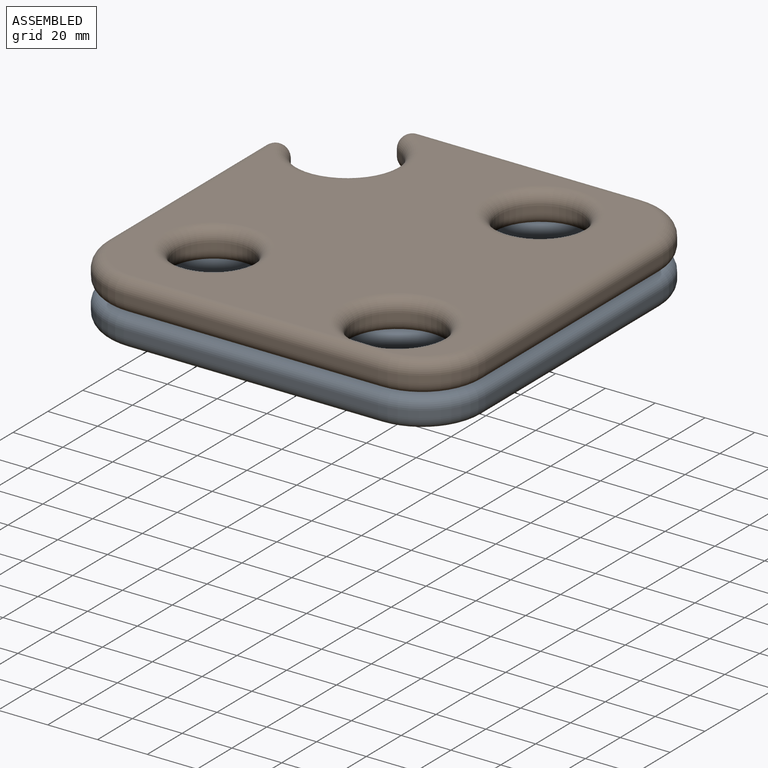
[diagram: assembled view]
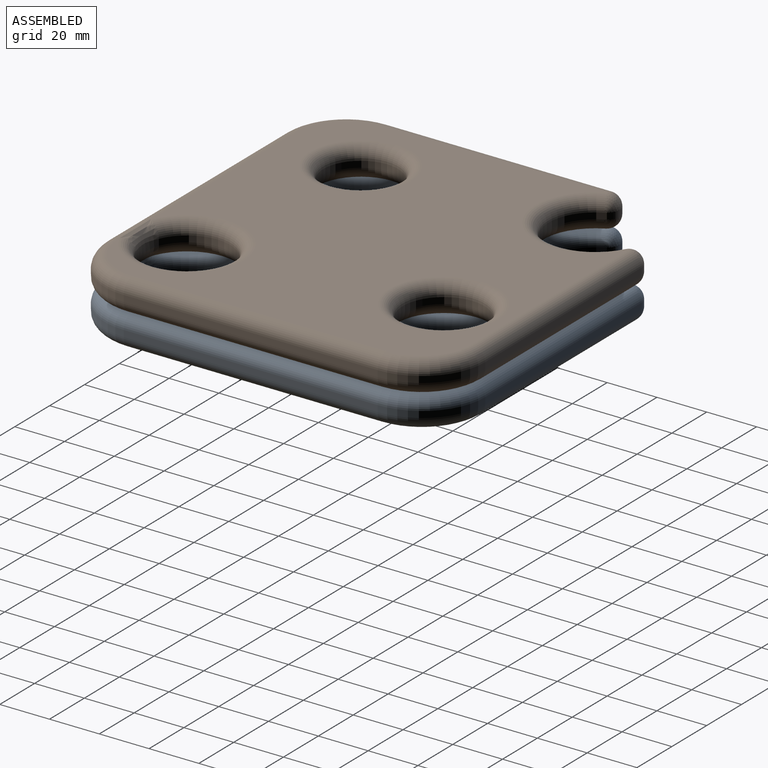
[diagram: assembled view, second angle]
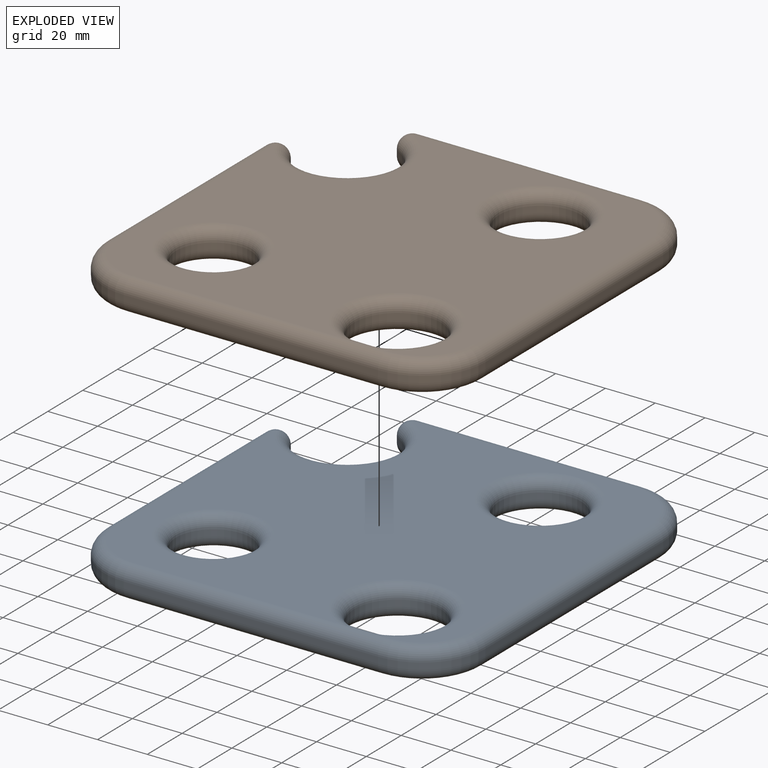
[diagram: exploded view]
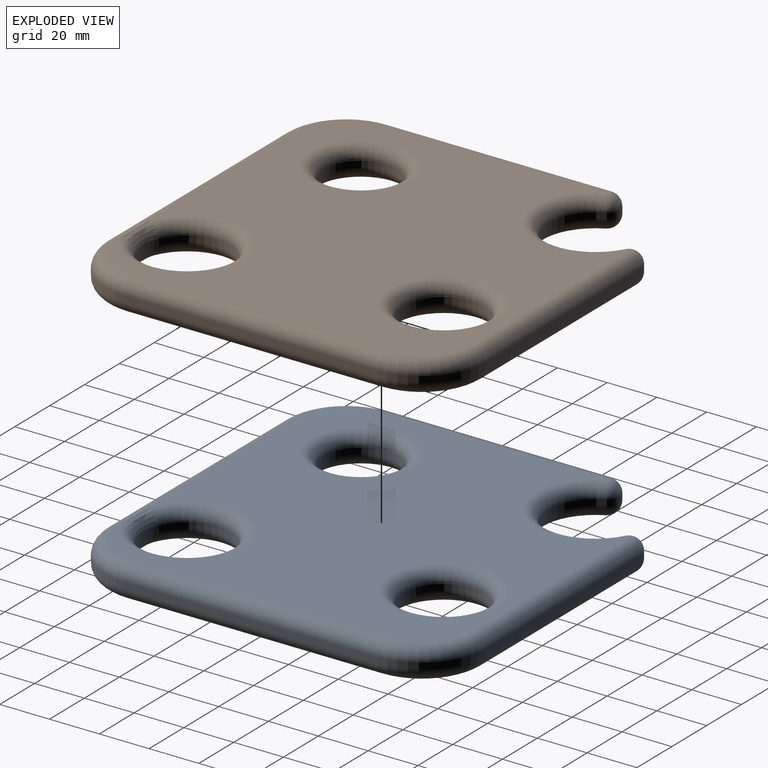
[diagram: exploded view, second angle]
ASSEMBLY  parts=2 mates=3
PART A: 43 faces, bbox 157.1x157x13.4 mm
  f0: plane 102.16x2.54mm, normal (0,-1,0), area 259.5mm2, adj f10,f12,f14,f22
  f1: plane 102.01x2.54mm, normal (1,0,0), area 259.1mm2, adj f10,f11,f17,f25
  f2: plane 89.65x2.54mm, normal (0,1,0), area 227.7mm2, adj f11,f18,f24,f40
  f3: plane 90.59x2.54mm, normal (-1,0,0), area 230.1mm2, adj f12,f15,f21,f35
  f4: plane 142.8x142.65mm, normal (0,0,1), area 14019.3mm2, adj f13,f14,f15,f16,f17,f18,f19,f31
  f5: plane 142.8x142.65mm, normal (0,0,-1), area 14019.3mm2, adj f20,f21,f22,f23,f24,f25,f26,f27
  f6: cylinder r=16.44mm len=32.88mm, axis (0,0,1), area 262.4mm2, adj f30,f42
  f7: cylinder r=18.94mm len=35.99mm, axis (0,0,1), area 181.6mm2, adj f35,f36,f39,f40
  f8: cylinder r=15.04mm len=30.08mm, axis (0,0,1), area 240mm2, adj f29,f33
  f9: cylinder r=17.47mm len=34.95mm, axis (0,0,1), area 278.9mm2, adj f27,f28,f31,f32
  f10: cylinder r=25.4mm len=25.4mm, axis (0,0,1), area 101.3mm2, adj f0,f1,f16,f23
  f11: cylinder r=25.4mm len=25.4mm, axis (0,0,-1), area 101.3mm2, adj f1,f2,f19,f26
  f12: cylinder r=25.4mm len=25.4mm, axis (0,0,-1), area 101.3mm2, adj f0,f3,f13,f20
  f13: torus R=20.32mm, axis (0,0,1), area 295.2mm2, adj f4,f12,f14,f15
  f14: cylinder r=5.08mm len=102.16mm, axis (-1,0,0), area 815.2mm2, adj f0,f4,f13,f16,f32
  f15: cylinder r=5.08mm len=90.59mm, axis (0,1,0), area 722.9mm2, adj f3,f4,f13,f37
  f16: torus R=20.32mm, axis (0,0,1), area 295.2mm2, adj f4,f10,f14,f17
  f17: cylinder r=5.08mm len=102.01mm, axis (0,-1,0), area 814mm2, adj f1,f4,f16,f19
  f18: cylinder r=5.08mm len=89.65mm, axis (1,0,0), area 715.3mm2, adj f2,f4,f19,f41
  f19: torus R=20.32mm, axis (0,0,1), area 295.2mm2, adj f4,f11,f17,f18
  f20: torus R=20.32mm, axis (0,0,1), area 295.2mm2, adj f5,f12,f21,f22
  f21: cylinder r=5.08mm len=90.59mm, axis (0,-1,0), area 722.9mm2, adj f3,f5,f20,f34
  f22: cylinder r=5.08mm len=102.16mm, axis (1,0,0), area 815.2mm2, adj f0,f5,f20,f23,f28
  f23: torus R=20.32mm, axis (0,0,1), area 295.2mm2, adj f5,f10,f22,f25
  f24: cylinder r=5.08mm len=89.65mm, axis (-1,0,0), area 715.3mm2, adj f2,f5,f26,f38
  f25: cylinder r=5.08mm len=102.01mm, axis (0,1,0), area 814mm2, adj f1,f5,f23,f26
  f26: torus R=20.32mm, axis (0,0,1), area 295.2mm2, adj f5,f11,f24,f25
  f27: torus R=22.55mm, axis (0,0,1), area 844.2mm2, adj f5,f9,f28
  f28: bspline ~19.01x5.42mm, area 102.6mm2, adj f9,f22,f27
  f29: torus R=20.12mm, axis (0,0,1), area 846.6mm2, adj f5,f8
  f30: torus R=21.52mm, axis (0,0,1), area 916.9mm2, adj f5,f6
  f31: torus R=22.55mm, axis (0,0,1), area 844.2mm2, adj f4,f9,f32
  f32: bspline ~19.01x5.42mm, area 102.6mm2, adj f9,f14,f31
  f33: torus R=20.12mm, axis (0,0,1), area 846.6mm2, adj f4,f8
  f34: sphere r=5.08mm, area 69.4mm2, adj f21,f35,f36
  f35: cylinder r=5.08mm len=9.65mm, axis (0,0,1), area 34.7mm2, adj f3,f7,f34,f37
  f36: torus R=24.02mm, axis (0,0,1), area 626.2mm2, adj f5,f7,f34,f38
  f37: sphere r=5.08mm, area 69.4mm2, adj f15,f35,f39
  f38: sphere r=5.08mm, area 68.5mm2, adj f24,f36,f40
  f39: torus R=24.02mm, axis (0,0,1), area 626.2mm2, adj f4,f7,f37,f41
  f40: cylinder r=5.08mm len=9.57mm, axis (0,0,1), area 34.3mm2, adj f2,f7,f38,f41
  f41: sphere r=5.08mm, area 68.5mm2, adj f18,f39,f40
  f42: torus R=21.52mm, axis (0,0,1), area 916.9mm2, adj f4,f6
PART B: same geometry as A
PLACE A t=(0.95,123.04,70.24)mm
PLACE B t=(0.95,123.04,82.94)mm
MATE cylindrical A.f6 <-> B.f6  axis (0,0,1) through (31.8,168.6,77.86)mm
MATE planar A.f4 <-> B.f5  axis (0,0,1) through (2.84,121.52,82.94)mm
MATE cylindrical B.f9 <-> A.f9  axis (0,0,1) through (41.77,72.46,90.96)mm
